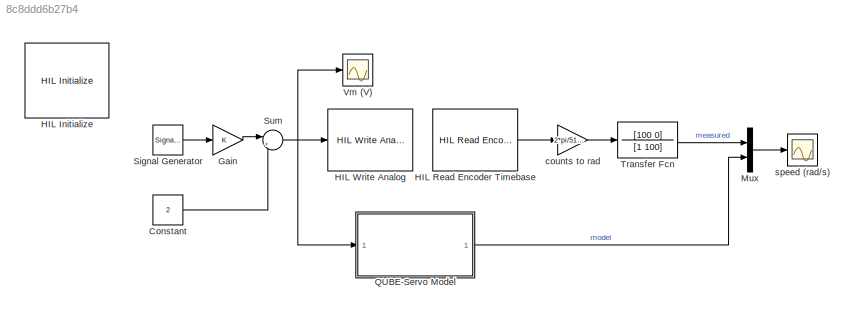
MODEL slx_8c8ddd6b27b4
KIND model
CONFIG AbsTol = auto
CONFIG EnableMultiTasking = on
CONFIG FixedStep = 0.002
CONFIG MaxStep = auto
CONFIG MinStep = auto
CONFIG RelTol = 1e-3
CONFIG SampleTimeConstraint = Unconstrained
CONFIG SolverName = ode1
CONFIG StartTime = 0.0
CONFIG StopTime = inf
BLOCK [Constant] Constant
  Value = 2
BLOCK [Gain] Gain
BLOCK [Reference] HIL Initialize  REF=quarc_library/Data Acquisition/Generic/Configuration/HIL Initialize
  AttributesFormatString = %<object_name> (%<board_type>-%<board_number>)
  Ports = []
  Priority = -99
  SourceBlock = quarc_library/Data Acquisition/Generic/Configuration/HIL Initialize
  SourceProductName = QUARC Targets
  SourceType = HIL Initialize
  UserDataPersistent = on
BLOCK [Reference] HIL Read Encoder Timebase  REF=quarc_library/Data Acquisition/Generic/Timebases/HIL Read Encoder
Timebase
  AttributesFormatString = (%<object_name>)
  Ports = [0, 1]
  SourceBlock = quarc_library/Data Acquisition/Generic/Timebases/HIL Read Encoder\nTimebase
  SourceProductName = QUARC Targets
  SourceType = HIL Read Encoder Timebase
  UserDataPersistent = on
BLOCK [Reference] HIL Write Analog  REF=quarc_library/Data Acquisition/Generic/Immediate I//O/HIL Write Analog
  AttributesFormatString = (%<object_name>)
  Ports = [1]
  SourceBlock = quarc_library/Data Acquisition/Generic/Immediate I//O/HIL Write Analog
  SourceProductName = QUARC Targets
  SourceType = HIL Write Analog
  UserDataPersistent = on
BLOCK [Mux] Mux
  DisplayOption = bar
  Inputs = 2
  Ports = [2, 1]
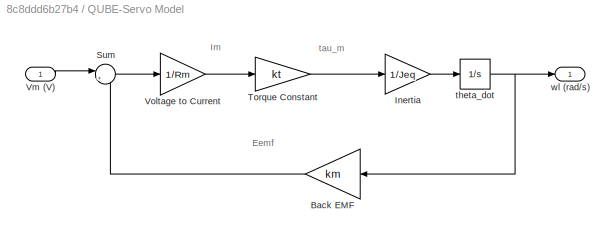
BLOCK [SubSystem] QUBE-Servo Model
  Ports = [1, 1]
  RequestExecContextInheritance = off
BLOCK [Gain] QUBE-Servo Model/Back EMF
  Gain = km
  OutDataTypeStr = Inherit: Same as input
  ParamDataTypeStr = Inherit: Same as input
  SaturateOnIntegerOverflow = on
BLOCK [Gain] QUBE-Servo Model/Inertia
  Gain = 1/Jeq
  OutDataTypeStr = Inherit: Same as input
  ParamDataTypeStr = Inherit: Same as input
  SaturateOnIntegerOverflow = on
BLOCK [Sum] QUBE-Servo Model/Sum
  InputSameDT = on
  Inputs = |+-
  OutDataTypeStr = Inherit: Same as first input
  Ports = [2, 1]
  SaturateOnIntegerOverflow = on
BLOCK [Gain] QUBE-Servo Model/Torque Constant
  Gain = kt
BLOCK [Inport] QUBE-Servo Model/Vm (V)
BLOCK [Gain] QUBE-Servo Model/Voltage to Current
  Gain = 1/Rm
  OutDataTypeStr = Inherit: Same as input
  ParamDataTypeStr = Inherit: Same as input
  SaturateOnIntegerOverflow = on
BLOCK [Integrator] QUBE-Servo Model/theta_dot
  Ports = [1, 1]
BLOCK [Outport] QUBE-Servo Model/wl (rad//s)
  VectorParamsAs1DForOutWhenUnconnected = off
BLOCK [SignalGenerator] Signal Generator
  Frequency = 0.4
  Ports = [0, 1]
  WaveForm = square
BLOCK [Sum] Sum
  Inputs = |++
  Ports = [2, 1]
BLOCK [TransferFcn] Transfer Fcn
  Denominator = [1 100]
  Numerator = [100 0]
BLOCK [Scope] Vm (V)
  Floating = off
  NumInputPorts = 1
  Ports = [1]
  ScopeSpecificationString = Simulink.scopes.TimeScopeBlockCfg('CurrentConfiguration', extmgr.ConfigurationSet(extmgr.Configuration('Core','General UI',true),extmgr.Configuration('Core','Source UI',true),extmgr.Configuration('Sources','WiredSimulink',true),extmgr.Configuration('Visuals','Time Domain',true,'SerializedDisplays',{struct('MinYLimReal','0.75','MaxYLimReal','3.25','YLabelReal','','MinYLimMag','0.75','MaxYLimMag','3...<+1324ch>
BLOCK [Gain] counts to rad
  Gain = 2*pi/512/4
BLOCK [Scope] speed (rad//s)
  Floating = off
  NumInputPorts = 1
  Ports = [1]
  ScopeSpecificationString = Simulink.scopes.TimeScopeBlockCfg('CurrentConfiguration', extmgr.ConfigurationSet(extmgr.Configuration('Core','General UI',true),extmgr.Configuration('Core','Source UI',true),extmgr.Configuration('Sources','WiredSimulink',true,'DataLoggingVariableName','ScopeData1'),extmgr.Configuration('Visuals','Time Domain',true,'SerializedDisplays',{struct('MinYLimReal','-8.96147','MaxYLimReal','80.65327','YLa...<+1407ch>
ANNOTATION QUBE-Servo Model: Eemf
ANNOTATION QUBE-Servo Model: Im
ANNOTATION QUBE-Servo Model: tau_m
LINE Constant:1 -> Sum:2
LINE Gain:1 -> Sum:1
LINE HIL Read Encoder Timebase:1 -> counts to rad:1
LINE Mux:1 -> speed (rad//s):1
LINE QUBE-Servo Model/Back EMF:1 -> QUBE-Servo Model/Sum:2
LINE QUBE-Servo Model/Inertia:1 -> QUBE-Servo Model/theta_dot:1
LINE QUBE-Servo Model/Sum:1 -> QUBE-Servo Model/Voltage to Current:1
LINE QUBE-Servo Model/Torque Constant:1 -> QUBE-Servo Model/Inertia:1
LINE QUBE-Servo Model/Vm (V):1 -> QUBE-Servo Model/Sum:1
LINE QUBE-Servo Model/Voltage to Current:1 -> QUBE-Servo Model/Torque Constant:1
NET QUBE-Servo Model/theta_dot:1 -> QUBE-Servo Model/Back EMF:1, QUBE-Servo Model/wl (rad//s):1
LINE QUBE-Servo Model:1 -> Mux:2
LINE Signal Generator:1 -> Gain:1
NET Sum:1 -> HIL Write Analog:1, QUBE-Servo Model:1, Vm (V):1
LINE Transfer Fcn:1 -> Mux:1
LINE counts to rad:1 -> Transfer Fcn:1
note: NET lines group one-source signal fan-out (src -> all destinations, sorted); 1:1 wires keep LINE
